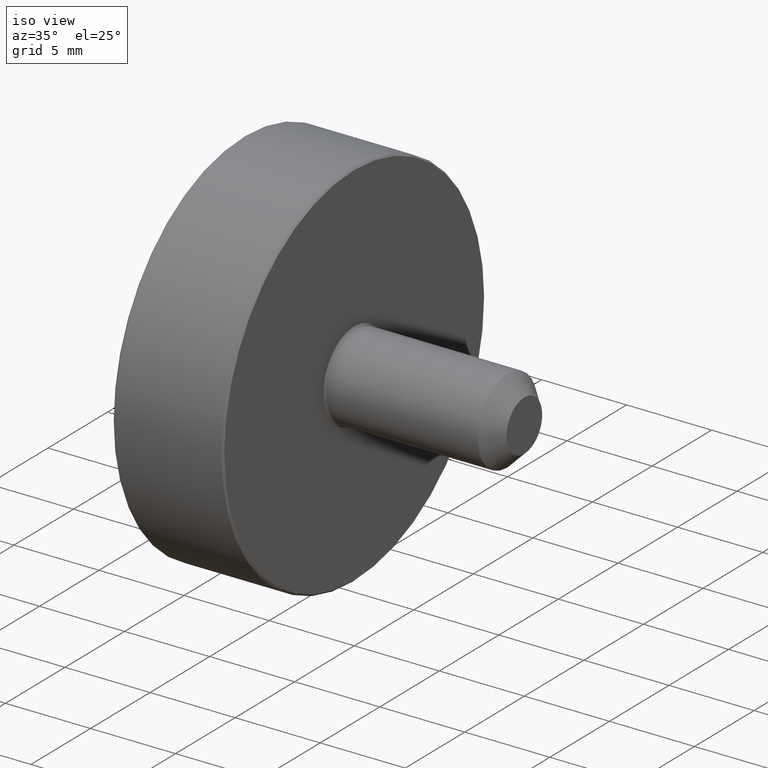
[diagram: clean part render]
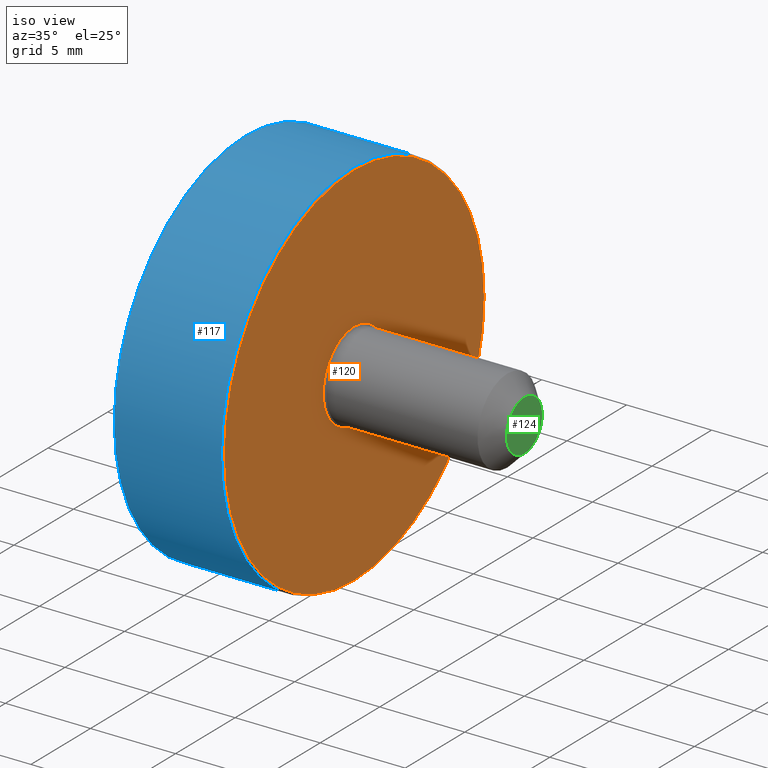
[diagram: same view with three faces highlighted in distinct colors, each labeled with its STEP entity id]
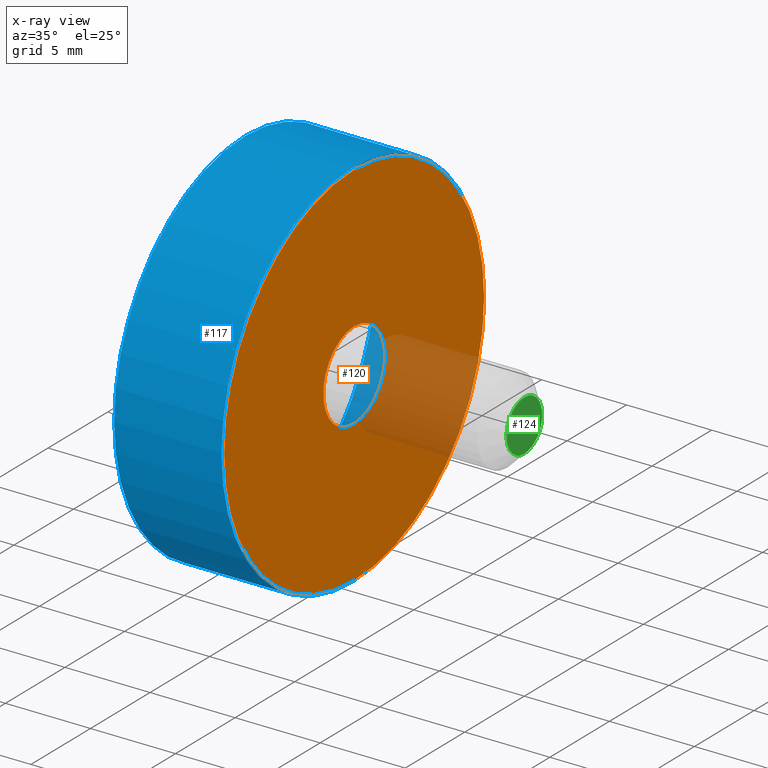
[diagram: x-ray of the same camera — body ghosted, the three highlighted faces saturated]
A machine part, iso view with three faces highlighted in distinct colors.
The next image is the same camera in x-ray (body ghosted, the three faces saturated) — at least one of them is partly hidden behind the body in this view.
Their STEP definitions:

[orange] entity #120 — the highlighted planar face has unit normal (1, 0, 0).
#16=PLANE('',#138);
#26=FACE_BOUND('',#51,.T.);
#35=FACE_OUTER_BOUND('',#50,.T.);
#50=EDGE_LOOP('',(#100));
#51=EDGE_LOOP('',(#101));
#66=CIRCLE('',#137,10.9);
#67=CIRCLE('',#139,2.6);
#76=VERTEX_POINT('',#207);
#77=VERTEX_POINT('',#210);
#86=EDGE_CURVE('',#76,#76,#66,.T.);
#87=EDGE_CURVE('',#77,#77,#67,.T.);
#100=ORIENTED_EDGE('',*,*,#86,.F.);
#101=ORIENTED_EDGE('',*,*,#87,.F.);
#120=ADVANCED_FACE('',(#35,#26),#16,.T.);
#137=AXIS2_PLACEMENT_3D('',#208,#168,#169);
#138=AXIS2_PLACEMENT_3D('',#209,#170,#171);
#139=AXIS2_PLACEMENT_3D('',#211,#172,#173);
#168=DIRECTION('center_axis',(-1.,0.,0.));
#169=DIRECTION('ref_axis',(0.,-1.,0.));
#170=DIRECTION('center_axis',(1.,0.,0.));
#171=DIRECTION('ref_axis',(0.,0.,-1.));
#172=DIRECTION('center_axis',(1.,0.,0.));
#173=DIRECTION('ref_axis',(0.,0.,1.));
#207=CARTESIAN_POINT('',(6.5,10.9,-1.33486501107062E-15));
#208=CARTESIAN_POINT('Origin',(6.5,0.,0.));
#209=CARTESIAN_POINT('Origin',(6.5,-4.48690509505221E-16,1.6821560979169E-16));
#210=CARTESIAN_POINT('',(6.5,3.18408167778312E-16,-2.6));
#211=CARTESIAN_POINT('Origin',(6.5,0.,0.));

[blue] entity #117 — the highlighted cylindrical surface (bore or boss wall) has radius 11 mm, axis along (1, 0, 0).
#19=CYLINDRICAL_SURFACE('',#132,11.);
#23=FACE_BOUND('',#45,.T.);
#32=FACE_OUTER_BOUND('',#44,.T.);
#44=EDGE_LOOP('',(#94));
#45=EDGE_LOOP('',(#95));
#62=CIRCLE('',#130,11.);
#64=CIRCLE('',#133,11.);
#72=VERTEX_POINT('',#196);
#74=VERTEX_POINT('',#201);
#82=EDGE_CURVE('',#72,#72,#62,.T.);
#84=EDGE_CURVE('',#74,#74,#64,.T.);
#94=ORIENTED_EDGE('',*,*,#84,.F.);
#95=ORIENTED_EDGE('',*,*,#82,.F.);
#117=ADVANCED_FACE('',(#32,#23),#19,.T.);
#130=AXIS2_PLACEMENT_3D('',#197,#154,#155);
#132=AXIS2_PLACEMENT_3D('',#200,#158,#159);
#133=AXIS2_PLACEMENT_3D('',#202,#160,#161);
#154=DIRECTION('center_axis',(-1.,0.,0.));
#155=DIRECTION('ref_axis',(0.,-1.,0.));
#158=DIRECTION('center_axis',(1.,0.,0.));
#159=DIRECTION('ref_axis',(0.,-1.,0.));
#160=DIRECTION('center_axis',(1.,0.,0.));
#161=DIRECTION('ref_axis',(0.,-1.,0.));
#196=CARTESIAN_POINT('',(0.1,11.,-1.34711147906209E-15));
#197=CARTESIAN_POINT('Origin',(0.1,0.,0.));
#200=CARTESIAN_POINT('Origin',(0.,0.,0.));
#201=CARTESIAN_POINT('',(6.4,11.,1.34711147906209E-15));
#202=CARTESIAN_POINT('Origin',(6.4,0.,0.));

[green] entity #124 — the highlighted planar face has unit normal (1, 0, 0).
#17=PLANE('',#146);
#39=FACE_OUTER_BOUND('',#58,.T.);
#58=EDGE_LOOP('',(#108));
#70=CIRCLE('',#145,1.5);
#80=VERTEX_POINT('',#219);
#90=EDGE_CURVE('',#80,#80,#70,.T.);
#108=ORIENTED_EDGE('',*,*,#90,.F.);
#124=ADVANCED_FACE('',(#39),#17,.T.);
#145=AXIS2_PLACEMENT_3D('',#220,#184,#185);
#146=AXIS2_PLACEMENT_3D('',#221,#186,#187);
#184=DIRECTION('center_axis',(-1.,0.,0.));
#185=DIRECTION('ref_axis',(0.,0.,1.));
#186=DIRECTION('center_axis',(1.,0.,0.));
#187=DIRECTION('ref_axis',(0.,0.,-1.));
#219=CARTESIAN_POINT('',(16.5,-1.83697019872103E-16,-1.5));
#220=CARTESIAN_POINT('Origin',(16.5,0.,0.));
#221=CARTESIAN_POINT('Origin',(16.5,4.62592926927149E-17,1.18032060367666E-16));